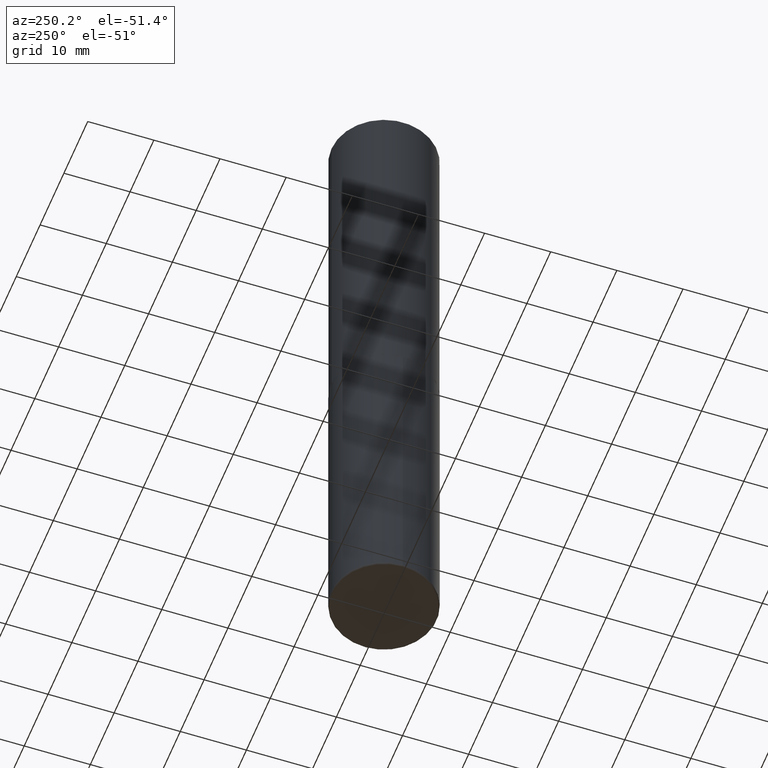
[diagram: clean part render]
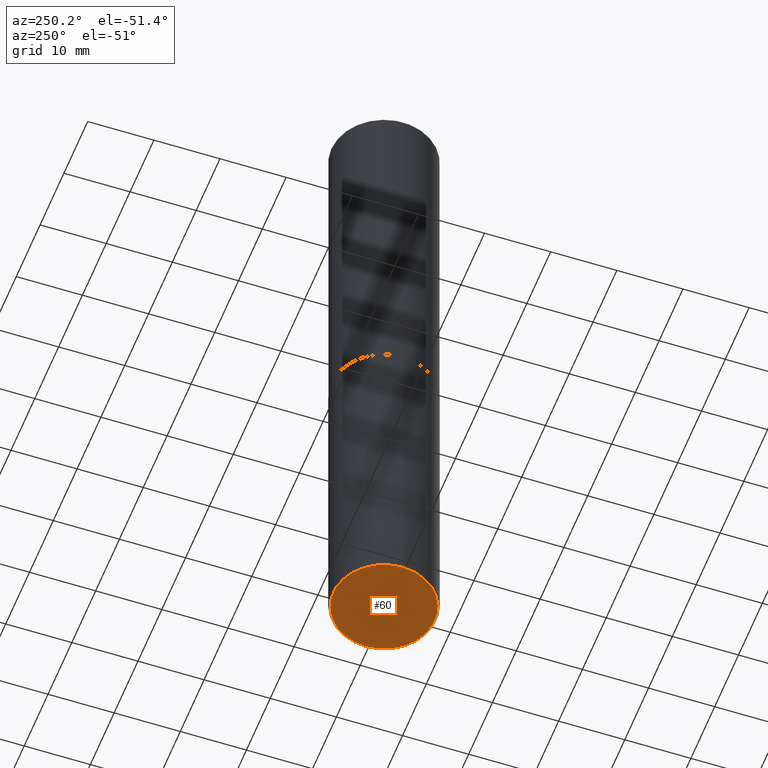
[diagram: same view with one face highlighted and labeled with its STEP entity id]
A machine part, auxiliary view. The second image highlights one B-rep face of the part: STEP entity #60.
In plain terms, the highlighted planar face has unit normal (0, -0, -1).
Its self-contained STEP definition (entity closure, byte-faithful):
#1 = CIRCLE ( 'NONE', #194, 0.3025000000000000466 ) ;
#4 = FACE_OUTER_BOUND ( 'NONE', #10, .T. ) ;
#10 = EDGE_LOOP ( 'NONE', ( #112, #359 ) ) ;
#28 = PLANE ( 'NONE',  #90 ) ;
#48 = DIRECTION ( 'NONE',  ( -2.445468806185136597E-29, 3.491481338843145583E-15, 1.000000000000000000 ) ) ;
#60 = ADVANCED_FACE ( 'NONE', ( #4 ), #28, .T. ) ;
#77 = CARTESIAN_POINT ( 'NONE',  ( 9.781875224740545266E-29, -1.396592535537258075E-14, -3.999999999999999556 ) ) ;
#90 = AXIS2_PLACEMENT_3D ( 'NONE', #252, #387, #414 ) ;
#112 = ORIENTED_EDGE ( 'NONE', *, *, #254, .F. ) ;
#114 = CARTESIAN_POINT ( 'NONE',  ( 0.3025000000000000466, -1.607827156537267738E-14, -3.999999999999999556 ) ) ;
#194 = AXIS2_PLACEMENT_3D ( 'NONE', #245, #48, #332 ) ;
#195 = VERTEX_POINT ( 'NONE', #114 ) ;
#201 = VERTEX_POINT ( 'NONE', #236 ) ;
#206 = DIRECTION ( 'NONE',  ( -2.445468806185136597E-29, 3.491481338843145583E-15, 1.000000000000000000 ) ) ;
#236 = CARTESIAN_POINT ( 'NONE',  ( -0.3025000000000000466, -1.176354903621605689E-14, -3.999999999999999556 ) ) ;
#245 = CARTESIAN_POINT ( 'NONE',  ( 9.781875224740545266E-29, -1.396592535537258075E-14, -3.999999999999999556 ) ) ;
#252 = CARTESIAN_POINT ( 'NONE',  ( 1.482687160976392448E-28, -6.741203388657175081E-15, -4.000000000000000000 ) ) ;
#254 = EDGE_CURVE ( 'NONE', #195, #201, #1, .T. ) ;
#295 = DIRECTION ( 'NONE',  ( 1.000000000000000000, -6.982962677686265922E-15, 0.000000000000000000 ) ) ;
#300 = EDGE_CURVE ( 'NONE', #201, #195, #389, .T. ) ;
#332 = DIRECTION ( 'NONE',  ( 1.000000000000000000, -6.982962677686265922E-15, 0.000000000000000000 ) ) ;
#358 = AXIS2_PLACEMENT_3D ( 'NONE', #77, #206, #295 ) ;
#359 = ORIENTED_EDGE ( 'NONE', *, *, #300, .F. ) ;
#387 = DIRECTION ( 'NONE',  ( 2.438088387897960049E-29, -3.491481338843145188E-15, -1.000000000000000000 ) ) ;
#389 = CIRCLE ( 'NONE', #358, 0.3025000000000000466 ) ;
#414 = DIRECTION ( 'NONE',  ( -1.000000000000000000, 6.982962677686265922E-15, -4.876176775795935793E-29 ) ) ;